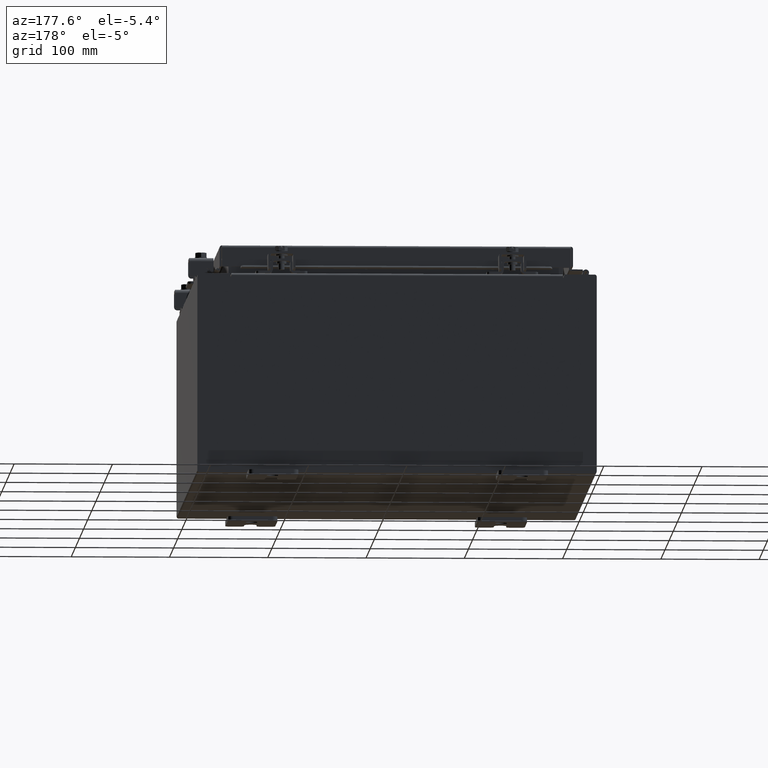
[diagram: clean part render]
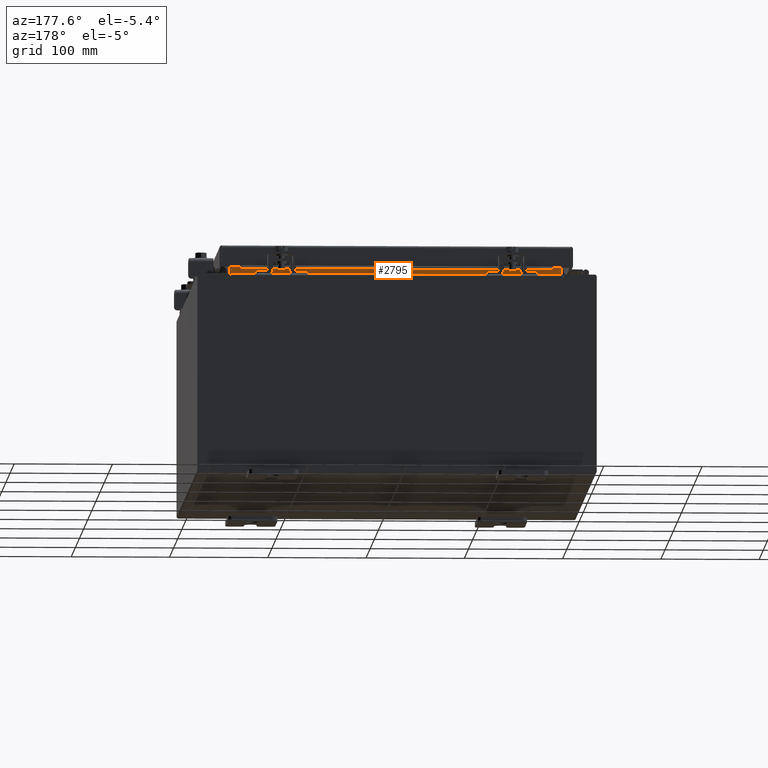
[diagram: same view with one face highlighted and labeled with its STEP entity id]
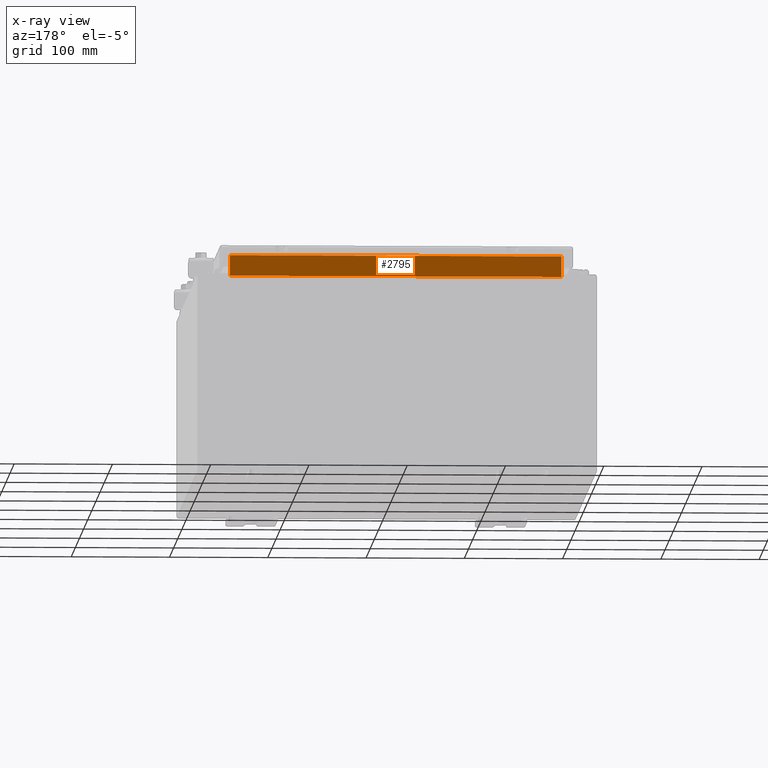
[diagram: x-ray of the same camera — body ghosted, the highlighted face saturated]
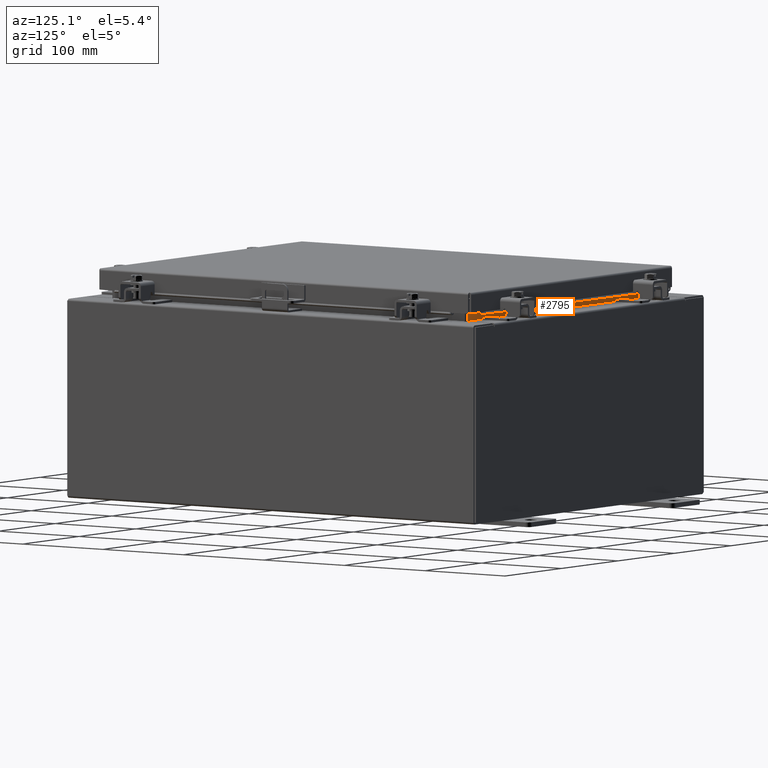
[diagram: same view with one face highlighted and labeled with its STEP entity id]
A machine part, auxiliary view. The second image highlights one B-rep face of the part: STEP entity #2795.
The next image is the same camera in x-ray: the body ghosted, the highlighted face saturated — about 0% of this face is hidden behind the body in this view.
A second angle (auxiliary view) of the same face is appended — the face is thin or edge-on in the first view.
In plain terms, the highlighted planar face has unit normal (0, 1, 0).
Its self-contained STEP definition (entity closure, byte-faithful):
#86 = VECTOR ( 'NONE', #19334, 39.37007874015748100 ) ;
#272 = VERTEX_POINT ( 'NONE', #24338 ) ;
#1681 = DIRECTION ( 'NONE',  ( -0.0000000000000000000, -0.0000000000000000000, 1.000000000000000000 ) ) ;
#1915 = FACE_OUTER_BOUND ( 'NONE', #4650, .T. ) ;
#1953 = VERTEX_POINT ( 'NONE', #18656 ) ;
#2795 = ADVANCED_FACE ( 'NONE', ( #1915 ), #16449, .T. ) ;
#3421 = CARTESIAN_POINT ( 'NONE',  ( -6.637200000000000000, -1.300299999999999800, 4.000000000000003600 ) ) ;
#3810 = CARTESIAN_POINT ( 'NONE',  ( 6.637200000000000000, -1.300299999999999800, 4.837600000000003700 ) ) ;
#4566 = VERTEX_POINT ( 'NONE', #17380 ) ;
#4650 = EDGE_LOOP ( 'NONE', ( #18323, #18758, #26377, #21161 ) ) ;
#5756 = LINE ( 'NONE', #29146, #23860 ) ;
#6173 = LINE ( 'NONE', #3421, #86 ) ;
#7394 = CARTESIAN_POINT ( 'NONE',  ( 0.0000000000000000000, -1.300299999999999800, 0.0000000000000000000 ) ) ;
#8615 = CARTESIAN_POINT ( 'NONE',  ( 6.637200000000000000, -1.300299999999999800, 4.837600000000003700 ) ) ;
#9670 = DIRECTION ( 'NONE',  ( 0.0000000000000000000, -0.0000000000000000000, 1.000000000000000000 ) ) ;
#10600 = LINE ( 'NONE', #28900, #21260 ) ;
#15088 = EDGE_CURVE ( 'NONE', #1953, #272, #6173, .T. ) ;
#15550 = DIRECTION ( 'NONE',  ( 1.000000000000000000, 0.0000000000000000000, -4.115964553824298400E-017 ) ) ;
#16449 = PLANE ( 'NONE',  #18798 ) ;
#16556 = LINE ( 'NONE', #8615, #21851 ) ;
#17380 = CARTESIAN_POINT ( 'NONE',  ( 6.637200000000000900, -1.300299999999999800, 4.013000000000003500 ) ) ;
#18323 = ORIENTED_EDGE ( 'NONE', *, *, #15088, .F. ) ;
#18656 = CARTESIAN_POINT ( 'NONE',  ( -6.637200000000000000, -1.300299999999999800, 4.837600000000003700 ) ) ;
#18758 = ORIENTED_EDGE ( 'NONE', *, *, #28451, .F. ) ;
#18798 = AXIS2_PLACEMENT_3D ( 'NONE', #7394, #23255, #9670 ) ;
#19334 = DIRECTION ( 'NONE',  ( -0.0000000000000000000, -0.0000000000000000000, -1.000000000000000000 ) ) ;
#19970 = VERTEX_POINT ( 'NONE', #3810 ) ;
#21161 = ORIENTED_EDGE ( 'NONE', *, *, #23483, .F. ) ;
#21260 = VECTOR ( 'NONE', #1681, 39.37007874015748100 ) ;
#21851 = VECTOR ( 'NONE', #22194, 39.37007874015748100 ) ;
#22194 = DIRECTION ( 'NONE',  ( -1.000000000000000000, -0.0000000000000000000, -0.0000000000000000000 ) ) ;
#23255 = DIRECTION ( 'NONE',  ( 0.0000000000000000000, 1.000000000000000000, 0.0000000000000000000 ) ) ;
#23483 = EDGE_CURVE ( 'NONE', #272, #4566, #5756, .T. ) ;
#23860 = VECTOR ( 'NONE', #15550, 39.37007874015748100 ) ;
#24338 = CARTESIAN_POINT ( 'NONE',  ( -6.637199999999999100, -1.300299999999999800, 4.013000000000003500 ) ) ;
#25759 = EDGE_CURVE ( 'NONE', #4566, #19970, #10600, .T. ) ;
#26377 = ORIENTED_EDGE ( 'NONE', *, *, #25759, .F. ) ;
#28451 = EDGE_CURVE ( 'NONE', #19970, #1953, #16556, .T. ) ;
#28900 = CARTESIAN_POINT ( 'NONE',  ( 6.637200000000000000, -1.300299999999999800, 4.925300000000004500 ) ) ;
#29146 = CARTESIAN_POINT ( 'NONE',  ( -6.637200000000000000, -1.300299999999999800, 4.013000000000003500 ) ) ;